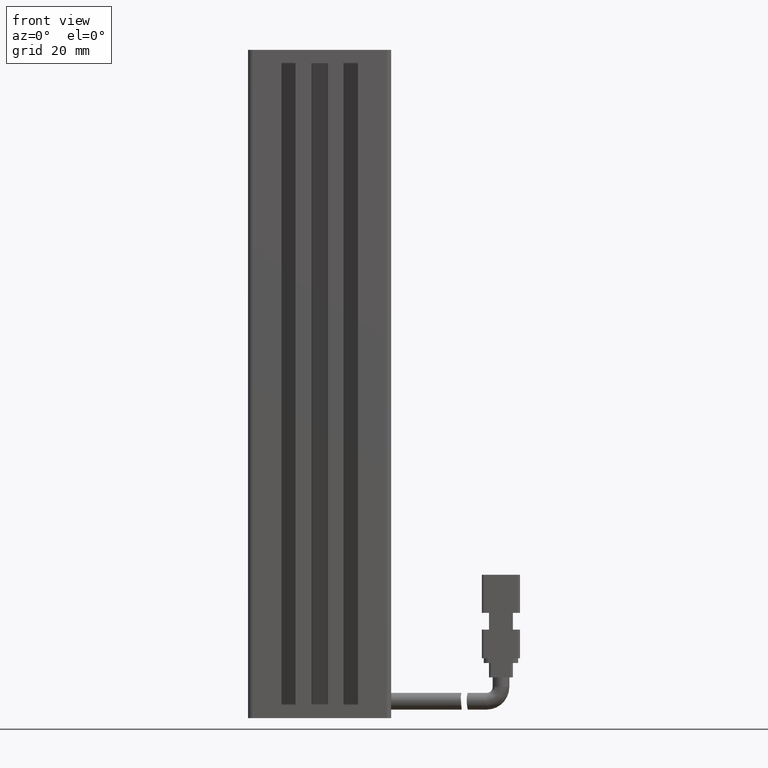
[diagram: clean part render]
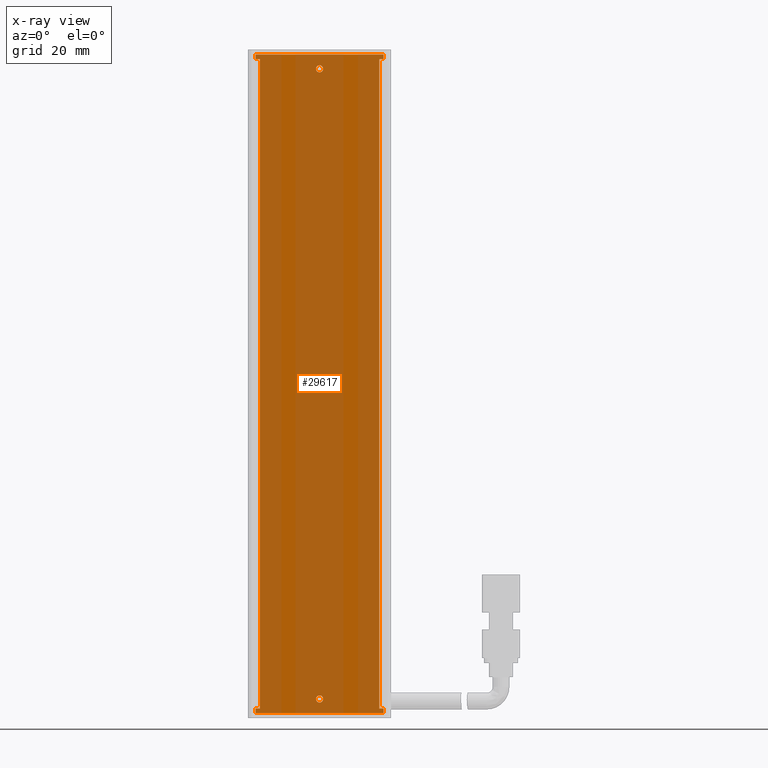
[diagram: x-ray — body ghosted, one internal face saturated and labeled with its STEP entity id]
A machine part, front view, then the same camera in x-ray: the body is ghosted and one INTERNAL B-rep face — a face not visible from any outside direction — is saturated and labeled: STEP entity #29617.
In plain terms, the highlighted planar face has unit normal (-0, 1, 0).
Its self-contained STEP definition (entity closure, byte-faithful):
#478 = CARTESIAN_POINT ( 'NONE',  ( 40.92537974683541800, 32.19594479660386100, -48.24999999999992900 ) ) ;
#500 = LINE ( 'NONE', #8819, #30229 ) ;
#673 = EDGE_CURVE ( 'NONE', #13368, #29513, #6589, .T. ) ;
#842 = LINE ( 'NONE', #27524, #22958 ) ;
#1441 = LINE ( 'NONE', #21034, #31126 ) ;
#1775 = VECTOR ( 'NONE', #9230, 1000.000000000000000 ) ;
#2016 = VECTOR ( 'NONE', #28436, 1000.000000000000000 ) ;
#2583 = EDGE_CURVE ( 'NONE', #29513, #13368, #14618, .T. ) ;
#2850 = EDGE_CURVE ( 'NONE', #23942, #9246, #500, .T. ) ;
#2895 = CARTESIAN_POINT ( 'NONE',  ( 54.32537974683541600, 32.19594479660386100, -45.99999999999992900 ) ) ;
#2987 = FACE_OUTER_BOUND ( 'NONE', #17363, .T. ) ;
#3343 = AXIS2_PLACEMENT_3D ( 'NONE', #21161, #20905, #20786 ) ;
#3629 = CARTESIAN_POINT ( 'NONE',  ( 40.92537974683539700, 32.19594479660386100, -180.2499999999999400 ) ) ;
#3793 = CARTESIAN_POINT ( 'NONE',  ( 40.92537974683539700, 32.19594479660386100, -181.7499999999999400 ) ) ;
#4192 = DIRECTION ( 'NONE',  ( -5.551115123125781500E-017, -0.0000000000000000000, -1.000000000000000000 ) ) ;
#4536 = PLANE ( 'NONE',  #16374 ) ;
#4651 = EDGE_CURVE ( 'NONE', #9643, #10097, #12563, .T. ) ;
#4879 = VECTOR ( 'NONE', #4192, 1000.000000000000000 ) ;
#4896 = ORIENTED_EDGE ( 'NONE', *, *, #20077, .T. ) ;
#5206 = EDGE_CURVE ( 'NONE', #37275, #35397, #23670, .T. ) ;
#5642 = EDGE_LOOP ( 'NONE', ( #31517, #21967 ) ) ;
#5714 = ORIENTED_EDGE ( 'NONE', *, *, #673, .F. ) ;
#6055 = ORIENTED_EDGE ( 'NONE', *, *, #9069, .T. ) ;
#6151 = CARTESIAN_POINT ( 'NONE',  ( 27.52537974683539800, 32.19594479660386800, -183.0000000000000000 ) ) ;
#6346 = VECTOR ( 'NONE', #7838, 1000.000000000000000 ) ;
#6589 = CIRCLE ( 'NONE', #21116, 0.7500000000000006700 ) ;
#6632 = LINE ( 'NONE', #22039, #36227 ) ;
#7508 = VERTEX_POINT ( 'NONE', #28439 ) ;
#7529 = DIRECTION ( 'NONE',  ( -0.0000000000000000000, 1.000000000000000000, 0.0000000000000000000 ) ) ;
#7838 = DIRECTION ( 'NONE',  ( -5.551115123125781500E-017, -0.0000000000000000000, -1.000000000000000000 ) ) ;
#7860 = ORIENTED_EDGE ( 'NONE', *, *, #23563, .F. ) ;
#8143 = EDGE_CURVE ( 'NONE', #26681, #16203, #22391, .T. ) ;
#8666 = DIRECTION ( 'NONE',  ( -0.0000000000000000000, -0.0000000000000000000, -1.000000000000000000 ) ) ;
#8819 = CARTESIAN_POINT ( 'NONE',  ( 25.92537974683541800, 32.19594479660386100, -47.00000000000000000 ) ) ;
#9069 = EDGE_CURVE ( 'NONE', #35397, #15573, #27634, .T. ) ;
#9134 = CARTESIAN_POINT ( 'NONE',  ( 53.42537974683542500, 32.19594479660386800, -47.00000000000000000 ) ) ;
#9230 = DIRECTION ( 'NONE',  ( -1.000000000000000000, -0.0000000000000000000, 5.551115123125781500E-017 ) ) ;
#9243 = CARTESIAN_POINT ( 'NONE',  ( 28.42537974683542100, 32.19594479660386800, -45.00000000000000000 ) ) ;
#9246 = VERTEX_POINT ( 'NONE', #9929 ) ;
#9457 = LINE ( 'NONE', #12183, #1775 ) ;
#9567 = DIRECTION ( 'NONE',  ( -0.0000000000000000000, -0.0000000000000000000, -1.000000000000000000 ) ) ;
#9643 = VERTEX_POINT ( 'NONE', #11708 ) ;
#9929 = CARTESIAN_POINT ( 'NONE',  ( 54.32537974683541600, 32.19594479660386100, -47.00000000000000000 ) ) ;
#10097 = VERTEX_POINT ( 'NONE', #23736 ) ;
#10321 = DIRECTION ( 'NONE',  ( 5.551115123125781500E-017, 0.0000000000000000000, 1.000000000000000000 ) ) ;
#10450 = CARTESIAN_POINT ( 'NONE',  ( 40.92537974683542500, 32.19594479660386800, -47.00000000000000000 ) ) ;
#10455 = CARTESIAN_POINT ( 'NONE',  ( 27.52537974683539800, 32.19594479660386800, -47.00000000000000000 ) ) ;
#10588 = DIRECTION ( 'NONE',  ( 1.000000000000000000, 0.0000000000000000000, -5.551115123125781500E-017 ) ) ;
#10718 = CARTESIAN_POINT ( 'NONE',  ( 28.42537974683542100, 32.19594479660386100, -47.00000000000000000 ) ) ;
#10903 = ORIENTED_EDGE ( 'NONE', *, *, #24676, .F. ) ;
#10963 = AXIS2_PLACEMENT_3D ( 'NONE', #28633, #11473, #31512 ) ;
#11091 = VERTEX_POINT ( 'NONE', #10455 ) ;
#11158 = EDGE_CURVE ( 'NONE', #16203, #26681, #21123, .T. ) ;
#11298 = LINE ( 'NONE', #15802, #33246 ) ;
#11473 = DIRECTION ( 'NONE',  ( -0.0000000000000000000, -1.000000000000000000, -0.0000000000000000000 ) ) ;
#11708 = CARTESIAN_POINT ( 'NONE',  ( 54.32537974683541600, 32.19594479660386100, -183.0000000000000000 ) ) ;
#12183 = CARTESIAN_POINT ( 'NONE',  ( 54.32537974683541600, 32.19594479660386100, -183.9999999999999400 ) ) ;
#12441 = ORIENTED_EDGE ( 'NONE', *, *, #37230, .F. ) ;
#12563 = LINE ( 'NONE', #2895, #4879 ) ;
#12793 = CARTESIAN_POINT ( 'NONE',  ( 54.32537974683541600, 32.19594479660386100, -45.99999999999992900 ) ) ;
#12962 = VERTEX_POINT ( 'NONE', #12793 ) ;
#13343 = DIRECTION ( 'NONE',  ( 1.000000000000000000, 0.0000000000000000000, -0.0000000000000000000 ) ) ;
#13368 = VERTEX_POINT ( 'NONE', #3793 ) ;
#13731 = CARTESIAN_POINT ( 'NONE',  ( 40.92537974683541800, 32.19594479660386100, -48.99999999999992900 ) ) ;
#14618 = CIRCLE ( 'NONE', #3343, 0.7500000000000006700 ) ;
#15573 = VERTEX_POINT ( 'NONE', #6151 ) ;
#15802 = CARTESIAN_POINT ( 'NONE',  ( 27.52537974683540500, 32.19594479660386100, -45.99999999999992900 ) ) ;
#16107 = VECTOR ( 'NONE', #8666, 1000.000000000000000 ) ;
#16109 = CARTESIAN_POINT ( 'NONE',  ( 53.42537974683542500, 32.19594479660386100, -183.0000000000000000 ) ) ;
#16203 = VERTEX_POINT ( 'NONE', #30375 ) ;
#16374 = AXIS2_PLACEMENT_3D ( 'NONE', #24788, #7529, #27647 ) ;
#16657 = DIRECTION ( 'NONE',  ( 0.0000000000000000000, 0.0000000000000000000, 1.000000000000000000 ) ) ;
#17363 = EDGE_LOOP ( 'NONE', ( #20616, #25480, #27346, #10903, #12441, #7860, #4896, #24523, #6055, #36799, #34512, #26134 ) ) ;
#18385 = FACE_BOUND ( 'NONE', #18446, .T. ) ;
#18446 = EDGE_LOOP ( 'NONE', ( #19701, #5714 ) ) ;
#18474 = LINE ( 'NONE', #10450, #33651 ) ;
#18557 = VERTEX_POINT ( 'NONE', #33820 ) ;
#19019 = VERTEX_POINT ( 'NONE', #16109 ) ;
#19701 = ORIENTED_EDGE ( 'NONE', *, *, #2583, .F. ) ;
#20029 = VECTOR ( 'NONE', #32130, 1000.000000000000000 ) ;
#20077 = EDGE_CURVE ( 'NONE', #11091, #37275, #18474, .T. ) ;
#20472 = AXIS2_PLACEMENT_3D ( 'NONE', #13731, #33745, #16657 ) ;
#20616 = ORIENTED_EDGE ( 'NONE', *, *, #35061, .F. ) ;
#20786 = DIRECTION ( 'NONE',  ( 0.0000000000000000000, 0.0000000000000000000, 1.000000000000000000 ) ) ;
#20905 = DIRECTION ( 'NONE',  ( -0.0000000000000000000, -1.000000000000000000, -0.0000000000000000000 ) ) ;
#21034 = CARTESIAN_POINT ( 'NONE',  ( 53.42537974683542500, 32.19594479660386800, -45.00000000000000000 ) ) ;
#21116 = AXIS2_PLACEMENT_3D ( 'NONE', #21953, #28045, #21864 ) ;
#21123 = CIRCLE ( 'NONE', #20472, 0.7500000000000006700 ) ;
#21161 = CARTESIAN_POINT ( 'NONE',  ( 40.92537974683539700, 32.19594479660386100, -180.9999999999999400 ) ) ;
#21546 = CARTESIAN_POINT ( 'NONE',  ( 28.42537974683542100, 32.19594479660386800, -183.0000000000000000 ) ) ;
#21655 = DIRECTION ( 'NONE',  ( 5.551115123125781500E-017, 0.0000000000000000000, 1.000000000000000000 ) ) ;
#21864 = DIRECTION ( 'NONE',  ( 0.0000000000000000000, 0.0000000000000000000, 1.000000000000000000 ) ) ;
#21953 = CARTESIAN_POINT ( 'NONE',  ( 40.92537974683539700, 32.19594479660386100, -180.9999999999999400 ) ) ;
#21967 = ORIENTED_EDGE ( 'NONE', *, *, #11158, .F. ) ;
#22039 = CARTESIAN_POINT ( 'NONE',  ( 54.32537974683541600, 32.19594479660386100, -45.99999999999992900 ) ) ;
#22391 = CIRCLE ( 'NONE', #10963, 0.7500000000000006700 ) ;
#22958 = VECTOR ( 'NONE', #10321, 1000.000000000000000 ) ;
#23554 = EDGE_CURVE ( 'NONE', #18557, #15573, #11298, .T. ) ;
#23563 = EDGE_CURVE ( 'NONE', #11091, #7508, #842, .T. ) ;
#23670 = LINE ( 'NONE', #9243, #16107 ) ;
#23736 = CARTESIAN_POINT ( 'NONE',  ( 54.32537974683540900, 32.19594479660386100, -183.9999999999999400 ) ) ;
#23942 = VERTEX_POINT ( 'NONE', #9134 ) ;
#24523 = ORIENTED_EDGE ( 'NONE', *, *, #5206, .T. ) ;
#24676 = EDGE_CURVE ( 'NONE', #12962, #9246, #28394, .T. ) ;
#24788 = CARTESIAN_POINT ( 'NONE',  ( 54.32537974683541600, 32.19594479660386100, -45.99999999999992900 ) ) ;
#25086 = CARTESIAN_POINT ( 'NONE',  ( 54.32537974683541600, 32.19594479660386100, -45.99999999999992900 ) ) ;
#25480 = ORIENTED_EDGE ( 'NONE', *, *, #34471, .F. ) ;
#25587 = CARTESIAN_POINT ( 'NONE',  ( 40.92537974683542500, 32.19594479660386800, -183.0000000000000000 ) ) ;
#25918 = LINE ( 'NONE', #25587, #2016 ) ;
#26134 = ORIENTED_EDGE ( 'NONE', *, *, #4651, .F. ) ;
#26435 = CARTESIAN_POINT ( 'NONE',  ( 40.92537974683542500, 32.19594479660386800, -183.0000000000000000 ) ) ;
#26681 = VERTEX_POINT ( 'NONE', #478 ) ;
#27346 = ORIENTED_EDGE ( 'NONE', *, *, #2850, .T. ) ;
#27524 = CARTESIAN_POINT ( 'NONE',  ( 27.52537974683540500, 32.19594479660386100, -45.99999999999992900 ) ) ;
#27634 = LINE ( 'NONE', #26435, #20029 ) ;
#27647 = DIRECTION ( 'NONE',  ( 5.551115123125781500E-017, 0.0000000000000000000, 1.000000000000000000 ) ) ;
#28045 = DIRECTION ( 'NONE',  ( -0.0000000000000000000, -1.000000000000000000, -0.0000000000000000000 ) ) ;
#28394 = LINE ( 'NONE', #25086, #6346 ) ;
#28436 = DIRECTION ( 'NONE',  ( 1.000000000000000000, 0.0000000000000000000, 0.0000000000000000000 ) ) ;
#28439 = CARTESIAN_POINT ( 'NONE',  ( 27.52537974683541900, 32.19594479660386100, -45.99999999999992900 ) ) ;
#28633 = CARTESIAN_POINT ( 'NONE',  ( 40.92537974683541800, 32.19594479660386100, -48.99999999999992900 ) ) ;
#29513 = VERTEX_POINT ( 'NONE', #3629 ) ;
#29617 = ADVANCED_FACE ( 'NONE', ( #2987, #32652, #18385 ), #4536, .F. ) ;
#30229 = VECTOR ( 'NONE', #37279, 1000.000000000000000 ) ;
#30375 = CARTESIAN_POINT ( 'NONE',  ( 40.92537974683541800, 32.19594479660386100, -49.74999999999993600 ) ) ;
#31126 = VECTOR ( 'NONE', #9567, 1000.000000000000000 ) ;
#31512 = DIRECTION ( 'NONE',  ( 0.0000000000000000000, 0.0000000000000000000, 1.000000000000000000 ) ) ;
#31517 = ORIENTED_EDGE ( 'NONE', *, *, #8143, .F. ) ;
#32130 = DIRECTION ( 'NONE',  ( -1.000000000000000000, -0.0000000000000000000, 0.0000000000000000000 ) ) ;
#32380 = EDGE_CURVE ( 'NONE', #10097, #18557, #9457, .T. ) ;
#32652 = FACE_BOUND ( 'NONE', #5642, .T. ) ;
#33246 = VECTOR ( 'NONE', #21655, 1000.000000000000000 ) ;
#33651 = VECTOR ( 'NONE', #13343, 1000.000000000000000 ) ;
#33745 = DIRECTION ( 'NONE',  ( -0.0000000000000000000, -1.000000000000000000, -0.0000000000000000000 ) ) ;
#33820 = CARTESIAN_POINT ( 'NONE',  ( 27.52537974683539800, 32.19594479660386100, -183.9999999999999400 ) ) ;
#34471 = EDGE_CURVE ( 'NONE', #23942, #19019, #1441, .T. ) ;
#34512 = ORIENTED_EDGE ( 'NONE', *, *, #32380, .F. ) ;
#35061 = EDGE_CURVE ( 'NONE', #19019, #9643, #25918, .T. ) ;
#35397 = VERTEX_POINT ( 'NONE', #21546 ) ;
#36227 = VECTOR ( 'NONE', #10588, 1000.000000000000000 ) ;
#36799 = ORIENTED_EDGE ( 'NONE', *, *, #23554, .F. ) ;
#37230 = EDGE_CURVE ( 'NONE', #7508, #12962, #6632, .T. ) ;
#37275 = VERTEX_POINT ( 'NONE', #10718 ) ;
#37279 = DIRECTION ( 'NONE',  ( 1.000000000000000000, -0.0000000000000000000, 0.0000000000000000000 ) ) ;